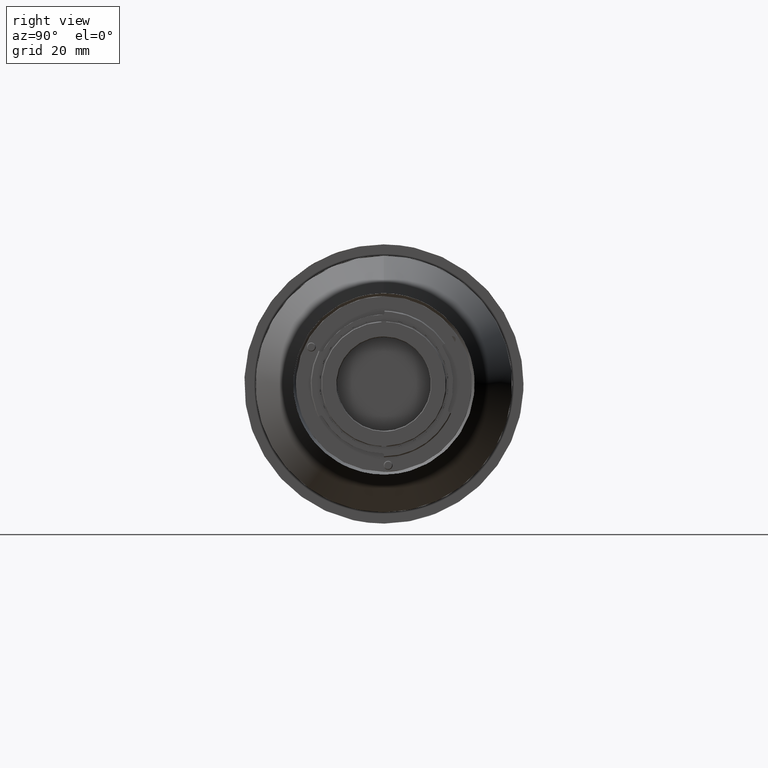
[diagram: clean part render]
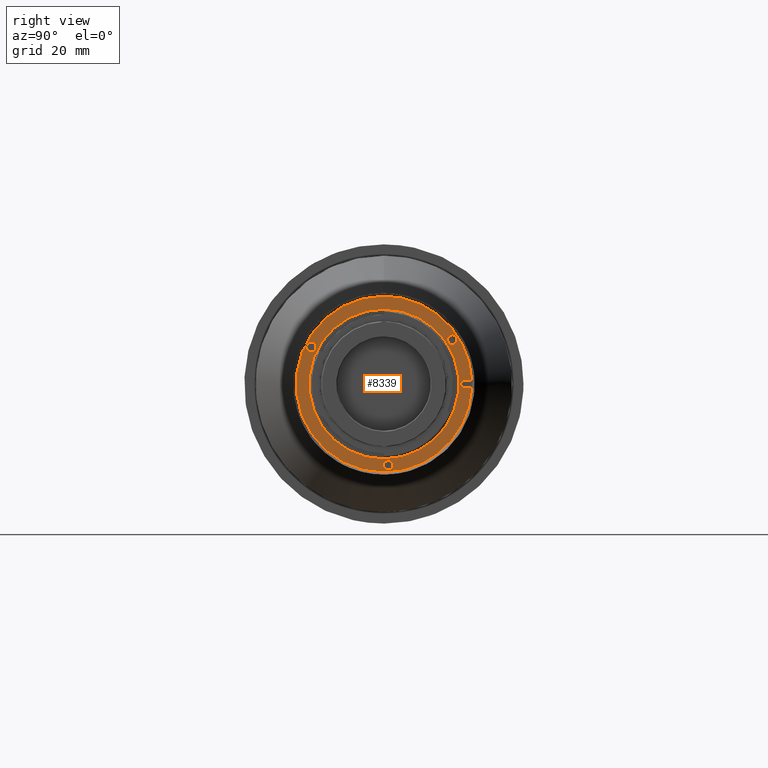
[diagram: same view with one face highlighted and labeled with its STEP entity id]
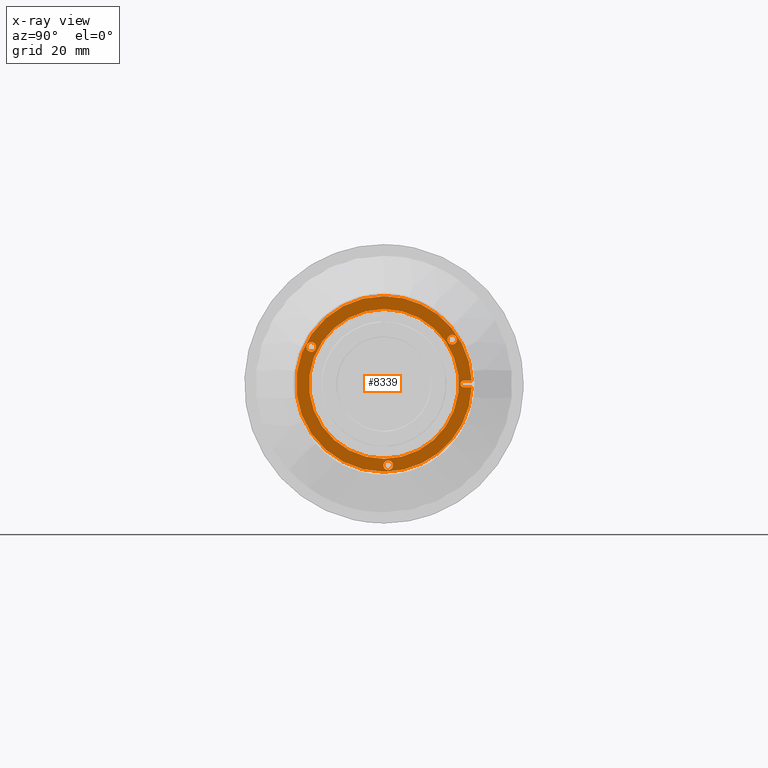
[diagram: x-ray of the same camera — body ghosted, the highlighted face saturated]
A machine part, right view. The second image highlights one B-rep face of the part: STEP entity #8339.
The next image is the same camera in x-ray: the body ghosted, the highlighted face saturated — about 0% of this face is hidden behind the body in this view.
In plain terms, the highlighted planar face has unit normal (-1, 0, 0).
Its self-contained STEP definition (entity closure, byte-faithful):
#67 = CIRCLE ( 'NONE', #6253, 1.500000000000001332 ) ;
#115 = DIRECTION ( 'NONE',  ( 1.000000000000000000, -1.691314818846965069E-10, 2.929680044215119908E-10 ) ) ;
#229 = CARTESIAN_POINT ( 'NONE',  ( 159.6815870464010061, 6.246692047711388432E-13, -136.6114151910000203 ) ) ;
#333 = AXIS2_PLACEMENT_3D ( 'NONE', #2272, #2320, #3023 ) ;
#363 = CARTESIAN_POINT ( 'NONE',  ( 159.6815870464010061, 8.192751909027750340E-26, -191.6114151909999919 ) ) ;
#404 = EDGE_LOOP ( 'NONE', ( #4883, #1102, #3408, #7309, #816, #949 ) ) ;
#439 = ORIENTED_EDGE ( 'NONE', *, *, #2952, .F. ) ;
#487 = CARTESIAN_POINT ( 'NONE',  ( 159.6815870464010061, -2.563499685034769992E-14, -164.1114151909999919 ) ) ;
#538 = VERTEX_POINT ( 'NONE', #6703 ) ;
#612 = CARTESIAN_POINT ( 'NONE',  ( 159.6815870465080422, 20.08706137687242688, -150.9731197977789918 ) ) ;
#727 = AXIS2_PLACEMENT_3D ( 'NONE', #487, #8443, #3922 ) ;
#768 = CIRCLE ( 'NONE', #333, 1.499999999847006382 ) ;
#813 = CARTESIAN_POINT ( 'NONE',  ( 159.6815870465080138, 21.38609948228350177, -150.2231197976249746 ) ) ;
#816 = ORIENTED_EDGE ( 'NONE', *, *, #1949, .F. ) ;
#923 = CARTESIAN_POINT ( 'NONE',  ( 159.6815870465080138, -22.72066636671650031, -152.5346574473749968 ) ) ;
#949 = ORIENTED_EDGE ( 'NONE', *, *, #4310, .F. ) ;
#1016 = EDGE_CURVE ( 'NONE', #2649, #3973, #2486, .T. ) ;
#1073 = AXIS2_PLACEMENT_3D ( 'NONE', #8780, #2228, #5204 ) ;
#1102 = ORIENTED_EDGE ( 'NONE', *, *, #5973, .T. ) ;
#1191 = DIRECTION ( 'NONE',  ( -1.000000000000000000, 0.000000000000000000, 0.000000000000000000 ) ) ;
#1197 = DIRECTION ( 'NONE',  ( -2.809141809322521168E-10, -1.000000000000000000, -2.837174940706927596E-10 ) ) ;
#1222 = VECTOR ( 'NONE', #4828, 1000.000000000000000 ) ;
#1370 = EDGE_CURVE ( 'NONE', #7615, #2053, #7982, .T. ) ;
#1371 = DIRECTION ( 'NONE',  ( 1.850371707897324367E-14, 0.8660254038837370549, -0.4999999998280100222 ) ) ;
#1393 = VECTOR ( 'NONE', #8238, 1000.000000000000000 ) ;
#1471 = DIRECTION ( 'NONE',  ( 1.000000000000000000, -5.734337430388640340E-12, 6.006119098474229983E-25 ) ) ;
#1656 = ORIENTED_EDGE ( 'NONE', *, *, #1016, .F. ) ;
#1829 = EDGE_CURVE ( 'NONE', #2053, #7615, #5742, .T. ) ;
#1949 = EDGE_CURVE ( 'NONE', #7460, #538, #2702, .T. ) ;
#2015 = DIRECTION ( 'NONE',  ( 1.000000000000000000, -1.691314818846965069E-10, 2.929680044215119908E-10 ) ) ;
#2025 = DIRECTION ( 'NONE',  ( 1.000000000000000000, 3.229739708000460410E-16, 4.979758290761390266E-32 ) ) ;
#2053 = VERTEX_POINT ( 'NONE', #2746 ) ;
#2126 = CARTESIAN_POINT ( 'NONE',  ( 159.6815870465080422, -21.42162826102339324, -153.2846574470405017 ) ) ;
#2187 = CIRCLE ( 'NONE', #4600, 23.44999999999999929 ) ;
#2228 = DIRECTION ( 'NONE',  ( 1.000000000000000000, 3.383249237616169908E-10, -3.173956215391725118E-23 ) ) ;
#2272 = CARTESIAN_POINT ( 'NONE',  ( 159.6815870465080138, -22.72066636671650031, -152.5346574473749968 ) ) ;
#2276 = CARTESIAN_POINT ( 'NONE',  ( 159.6815870460900157, 24.99999999985830001, -163.1114151908259942 ) ) ;
#2320 = DIRECTION ( 'NONE',  ( 1.000000000000000000, -1.691667962433395089E-10, -2.929818014236294921E-10 ) ) ;
#2411 = AXIS2_PLACEMENT_3D ( 'NONE', #7023, #2015, #4933 ) ;
#2419 = ORIENTED_EDGE ( 'NONE', *, *, #1829, .F. ) ;
#2486 = CIRCLE ( 'NONE', #5953, 23.44999999999999929 ) ;
#2536 = AXIS2_PLACEMENT_3D ( 'NONE', #923, #7391, #1371 ) ;
#2649 = VERTEX_POINT ( 'NONE', #7059 ) ;
#2702 = LINE ( 'NONE', #4917, #1222 ) ;
#2704 = VERTEX_POINT ( 'NONE', #363 ) ;
#2746 = CARTESIAN_POINT ( 'NONE',  ( 159.6815870465079854, 22.68513758800020241, -149.4731197980003117 ) ) ;
#2952 = EDGE_CURVE ( 'NONE', #7983, #8502, #768, .T. ) ;
#3023 = DIRECTION ( 'NONE',  ( 1.850371707897324367E-14, 0.8660254038837370549, -0.4999999998280100222 ) ) ;
#3119 = FACE_BOUND ( 'NONE', #4090, .T. ) ;
#3174 = AXIS2_PLACEMENT_3D ( 'NONE', #7736, #2025, #6940 ) ;
#3219 = FACE_BOUND ( 'NONE', #4876, .T. ) ;
#3314 = FACE_BOUND ( 'NONE', #7235, .T. ) ;
#3408 = ORIENTED_EDGE ( 'NONE', *, *, #4914, .T. ) ;
#3553 = ORIENTED_EDGE ( 'NONE', *, *, #7782, .F. ) ;
#3629 = AXIS2_PLACEMENT_3D ( 'NONE', #813, #115, #5858 ) ;
#3653 = EDGE_CURVE ( 'NONE', #2704, #538, #4239, .T. ) ;
#3851 = AXIS2_PLACEMENT_3D ( 'NONE', #8091, #7201, #7345 ) ;
#3904 = CARTESIAN_POINT ( 'NONE',  ( 159.6815870465080138, 1.334566883999859899, -189.5764683270000148 ) ) ;
#3922 = DIRECTION ( 'NONE',  ( 0.000000000000000000, 1.541845083808430972E-16, -1.000000000000000000 ) ) ;
#3925 = ORIENTED_EDGE ( 'NONE', *, *, #1370, .F. ) ;
#3973 = VERTEX_POINT ( 'NONE', #8429 ) ;
#4024 = PLANE ( 'NONE',  #6662 ) ;
#4041 = VERTEX_POINT ( 'NONE', #2276 ) ;
#4090 = EDGE_LOOP ( 'NONE', ( #8165, #439 ) ) ;
#4113 = EDGE_CURVE ( 'NONE', #7057, #7378, #4688, .T. ) ;
#4205 = VERTEX_POINT ( 'NONE', #5247 ) ;
#4207 = EDGE_LOOP ( 'NONE', ( #3925, #2419 ) ) ;
#4239 = CIRCLE ( 'NONE', #3174, 27.49999999999999645 ) ;
#4310 = EDGE_CURVE ( 'NONE', #4041, #7460, #7249, .T. ) ;
#4341 = CIRCLE ( 'NONE', #2536, 1.499999999847006382 ) ;
#4384 = AXIS2_PLACEMENT_3D ( 'NONE', #4962, #7004, #1197 ) ;
#4600 = AXIS2_PLACEMENT_3D ( 'NONE', #7139, #1471, #7224 ) ;
#4670 = EDGE_CURVE ( 'NONE', #8502, #7983, #4341, .T. ) ;
#4672 = VERTEX_POINT ( 'NONE', #229 ) ;
#4679 = FACE_OUTER_BOUND ( 'NONE', #404, .T. ) ;
#4688 = CIRCLE ( 'NONE', #1073, 1.500000000000001332 ) ;
#4828 = DIRECTION ( 'NONE',  ( 0.000000000000000000, 1.000000000000000000, 0.000000000000000000 ) ) ;
#4876 = EDGE_LOOP ( 'NONE', ( #9003, #3553 ) ) ;
#4883 = ORIENTED_EDGE ( 'NONE', *, *, #8723, .F. ) ;
#4914 = EDGE_CURVE ( 'NONE', #4672, #2704, #6758, .T. ) ;
#4917 = CARTESIAN_POINT ( 'NONE',  ( 159.6815870460000326, 25.00000000000000000, -165.1114151909999919 ) ) ;
#4933 = DIRECTION ( 'NONE',  ( 1.850371707897324683E-14, -0.8660254036957141244, -0.5000000001536755168 ) ) ;
#4962 = CARTESIAN_POINT ( 'NONE',  ( 159.6815870464610043, 24.99999999954980012, -164.1114151905499909 ) ) ;
#5204 = DIRECTION ( 'NONE',  ( 0.000000000000000000, 9.381962799241223288E-14, 1.000000000000000000 ) ) ;
#5247 = CARTESIAN_POINT ( 'NONE',  ( 159.6815870461420275, 27.48181216751330069, -163.1114151915399759 ) ) ;
#5544 = CARTESIAN_POINT ( 'NONE',  ( 159.6815870465079854, -24.01970447199997949, -151.7846574469999439 ) ) ;
#5742 = CIRCLE ( 'NONE', #3629, 1.499999999847006160 ) ;
#5858 = DIRECTION ( 'NONE',  ( 1.850371707897324683E-14, -0.8660254036957141244, -0.5000000001536755168 ) ) ;
#5933 = CARTESIAN_POINT ( 'NONE',  ( 159.6815870465080138, 1.334566884000000675, -188.0764683270000148 ) ) ;
#5953 = AXIS2_PLACEMENT_3D ( 'NONE', #9050, #7686, #8200 ) ;
#5973 = EDGE_CURVE ( 'NONE', #4205, #4672, #7765, .T. ) ;
#6096 = DIRECTION ( 'NONE',  ( 0.000000000000000000, 0.000000000000000000, 1.000000000000000000 ) ) ;
#6136 = EDGE_CURVE ( 'NONE', #3973, #2649, #2187, .T. ) ;
#6173 = CARTESIAN_POINT ( 'NONE',  ( 159.6815870460000326, 27.48181216763590129, -163.1114151909999919 ) ) ;
#6253 = AXIS2_PLACEMENT_3D ( 'NONE', #3904, #7721, #8939 ) ;
#6662 = AXIS2_PLACEMENT_3D ( 'NONE', #6759, #1191, #6096 ) ;
#6703 = CARTESIAN_POINT ( 'NONE',  ( 159.6815870461420275, 27.48181216729170018, -165.1114151904469907 ) ) ;
#6758 = CIRCLE ( 'NONE', #727, 27.49999999999999645 ) ;
#6759 = CARTESIAN_POINT ( 'NONE',  ( 159.6815870460000326, 27.81170281500000385, -164.1114141779999898 ) ) ;
#6940 = DIRECTION ( 'NONE',  ( 0.000000000000000000, 1.541845083808430972E-16, -1.000000000000000000 ) ) ;
#7004 = DIRECTION ( 'NONE',  ( 1.000000000000000000, -2.809130708144559808E-10, 3.708911952147235208E-10 ) ) ;
#7023 = CARTESIAN_POINT ( 'NONE',  ( 159.6815870465080138, 21.38609948228350177, -150.2231197976249746 ) ) ;
#7057 = VERTEX_POINT ( 'NONE', #5933 ) ;
#7059 = CARTESIAN_POINT ( 'NONE',  ( 159.6815870461350357, -1.735493991486225972E-26, -140.6614151910000032 ) ) ;
#7139 = CARTESIAN_POINT ( 'NONE',  ( 159.6815870461350357, 2.434747474904060031E-12, -164.1114151909999919 ) ) ;
#7201 = DIRECTION ( 'NONE',  ( 1.000000000000000000, 3.229739708000460410E-16, 4.979758290761390266E-32 ) ) ;
#7224 = DIRECTION ( 'NONE',  ( 0.000000000000000000, -1.047395478795039924E-13, -1.000000000000000000 ) ) ;
#7235 = EDGE_LOOP ( 'NONE', ( #1656, #7590 ) ) ;
#7249 = CIRCLE ( 'NONE', #4384, 0.9999999995497845795 ) ;
#7309 = ORIENTED_EDGE ( 'NONE', *, *, #3653, .T. ) ;
#7345 = DIRECTION ( 'NONE',  ( 0.000000000000000000, 1.541845083808430972E-16, -1.000000000000000000 ) ) ;
#7378 = VERTEX_POINT ( 'NONE', #9243 ) ;
#7391 = DIRECTION ( 'NONE',  ( 1.000000000000000000, -1.691667962433395089E-10, -2.929818014236294921E-10 ) ) ;
#7460 = VERTEX_POINT ( 'NONE', #8154 ) ;
#7590 = ORIENTED_EDGE ( 'NONE', *, *, #6136, .F. ) ;
#7615 = VERTEX_POINT ( 'NONE', #612 ) ;
#7686 = DIRECTION ( 'NONE',  ( 1.000000000000000000, -5.734337430388640340E-12, 6.006119098474229983E-25 ) ) ;
#7721 = DIRECTION ( 'NONE',  ( 1.000000000000000000, 3.383249237616169908E-10, -3.173956215391725118E-23 ) ) ;
#7736 = CARTESIAN_POINT ( 'NONE',  ( 159.6815870464010061, -2.563499685034769992E-14, -164.1114151909999919 ) ) ;
#7765 = CIRCLE ( 'NONE', #3851, 27.49999999999999645 ) ;
#7782 = EDGE_CURVE ( 'NONE', #7378, #7057, #67, .T. ) ;
#7922 = LINE ( 'NONE', #6173, #1393 ) ;
#7982 = CIRCLE ( 'NONE', #2411, 1.499999999847006160 ) ;
#7983 = VERTEX_POINT ( 'NONE', #5544 ) ;
#8091 = CARTESIAN_POINT ( 'NONE',  ( 159.6815870464010061, -2.563499685034769992E-14, -164.1114151909999919 ) ) ;
#8154 = CARTESIAN_POINT ( 'NONE',  ( 159.6815870462970111, 24.99999999995889866, -165.1114151907000007 ) ) ;
#8165 = ORIENTED_EDGE ( 'NONE', *, *, #4670, .F. ) ;
#8200 = DIRECTION ( 'NONE',  ( 0.000000000000000000, -1.047395478795039924E-13, -1.000000000000000000 ) ) ;
#8238 = DIRECTION ( 'NONE',  ( 0.000000000000000000, -1.000000000000000000, 0.000000000000000000 ) ) ;
#8339 = ADVANCED_FACE ( 'NONE', ( #3314, #3219, #3119, #8356, #4679 ), #4024, .F. ) ;
#8356 = FACE_BOUND ( 'NONE', #4207, .T. ) ;
#8429 = CARTESIAN_POINT ( 'NONE',  ( 159.6815870461350357, 1.805074806828777375E-13, -187.5614151910000089 ) ) ;
#8443 = DIRECTION ( 'NONE',  ( 1.000000000000000000, 3.229739708000460410E-16, 4.979758290761390266E-32 ) ) ;
#8502 = VERTEX_POINT ( 'NONE', #2126 ) ;
#8723 = EDGE_CURVE ( 'NONE', #4205, #4041, #7922, .T. ) ;
#8780 = CARTESIAN_POINT ( 'NONE',  ( 159.6815870465080138, 1.334566883999859899, -189.5764683270000148 ) ) ;
#8939 = DIRECTION ( 'NONE',  ( 0.000000000000000000, 9.381962799241223288E-14, 1.000000000000000000 ) ) ;
#9003 = ORIENTED_EDGE ( 'NONE', *, *, #4113, .F. ) ;
#9050 = CARTESIAN_POINT ( 'NONE',  ( 159.6815870461350357, 2.434747474904060031E-12, -164.1114151909999919 ) ) ;
#9243 = CARTESIAN_POINT ( 'NONE',  ( 159.6815870465080138, 1.334566883999999787, -191.0764683270000148 ) ) ;